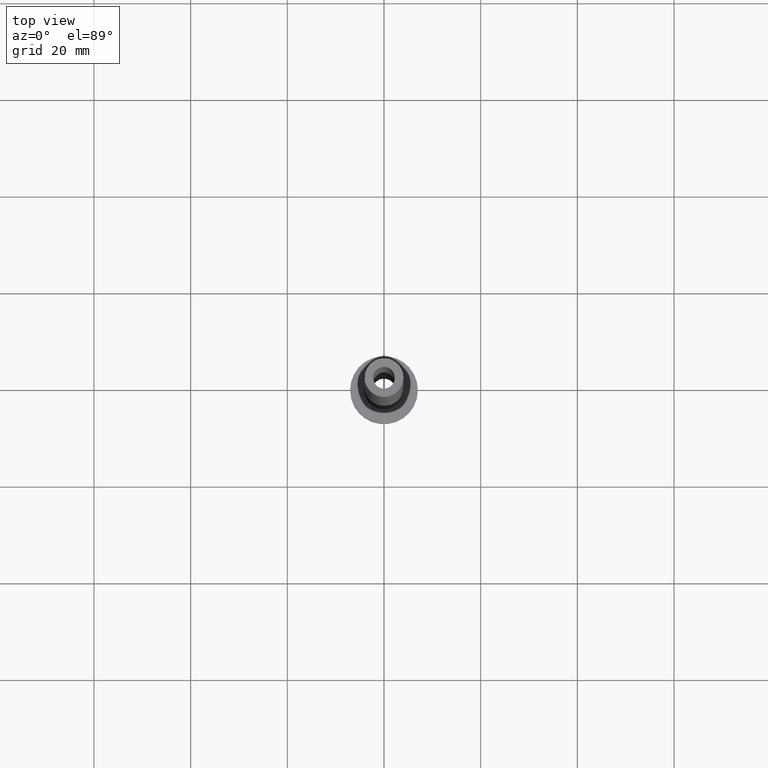
[diagram: clean part render]
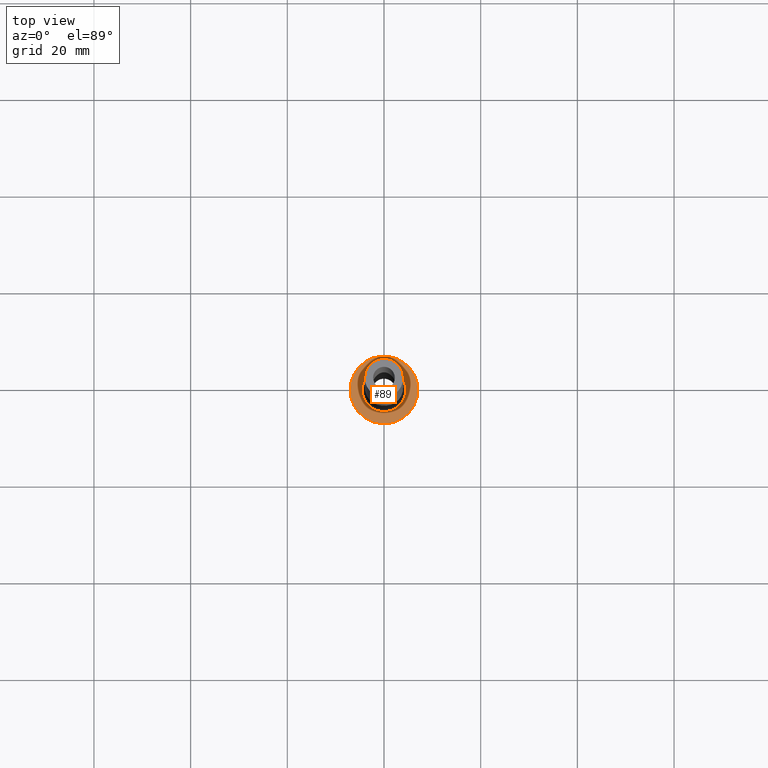
[diagram: same view with one face highlighted and labeled with its STEP entity id]
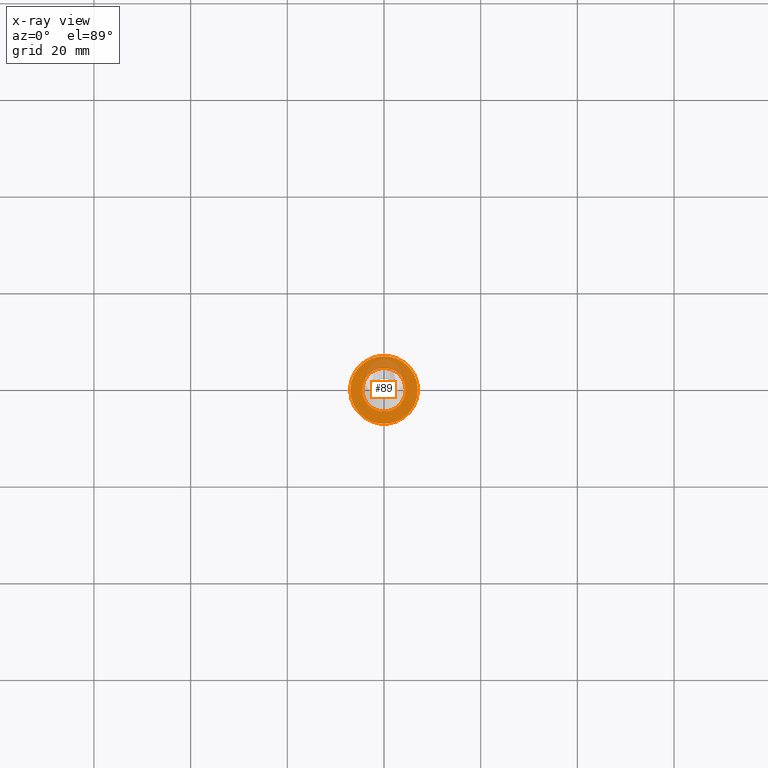
[diagram: x-ray of the same camera — body ghosted, the highlighted face saturated]
A machine part, top view. The second image highlights one B-rep face of the part: STEP entity #89.
The next image is the same camera in x-ray: the body ghosted, the highlighted face saturated — about 17% of this face is hidden behind the body in this view.
In plain terms, the highlighted planar face has unit normal (0, 0, 1).
Its self-contained STEP definition (entity closure, byte-faithful):
#3 = CIRCLE ( 'NONE', #285, 4.500000000000000888 ) ;
#25 = CIRCLE ( 'NONE', #182, 4.500000000000000888 ) ;
#34 = ORIENTED_EDGE ( 'NONE', *, *, #236, .T. ) ;
#36 = CARTESIAN_POINT ( 'NONE',  ( 0.000000000000000000, 0.000000000000000000, 5.000000000000000000 ) ) ;
#55 = CARTESIAN_POINT ( 'NONE',  ( -4.500000000000000888, 5.510910596163088569E-16, 5.000000000000002665 ) ) ;
#63 = VERTEX_POINT ( 'NONE', #109 ) ;
#83 = AXIS2_PLACEMENT_3D ( 'NONE', #422, #215, #461 ) ;
#87 = EDGE_LOOP ( 'NONE', ( #225, #224 ) ) ;
#89 = ADVANCED_FACE ( 'NONE', ( #423, #284 ), #174, .T. ) ;
#93 = DIRECTION ( 'NONE',  ( 1.000000000000000000, 0.000000000000000000, 0.000000000000000000 ) ) ;
#109 = CARTESIAN_POINT ( 'NONE',  ( 4.500000000000000888, 0.000000000000000000, 5.000000000000002665 ) ) ;
#113 = EDGE_CURVE ( 'NONE', #196, #328, #167, .T. ) ;
#146 = DIRECTION ( 'NONE',  ( 0.000000000000000000, 0.000000000000000000, 1.000000000000000000 ) ) ;
#167 = CIRCLE ( 'NONE', #304, 7.000000000000000000 ) ;
#172 = EDGE_CURVE ( 'NONE', #299, #63, #3, .T. ) ;
#174 = PLANE ( 'NONE',  #241 ) ;
#179 = DIRECTION ( 'NONE',  ( 1.000000000000000000, 0.000000000000000000, 0.000000000000000000 ) ) ;
#182 = AXIS2_PLACEMENT_3D ( 'NONE', #183, #296, #248 ) ;
#183 = CARTESIAN_POINT ( 'NONE',  ( 0.000000000000000000, 0.000000000000000000, 5.000000000000000000 ) ) ;
#196 = VERTEX_POINT ( 'NONE', #217 ) ;
#215 = DIRECTION ( 'NONE',  ( 0.000000000000000000, 0.000000000000000000, 1.000000000000000000 ) ) ;
#217 = CARTESIAN_POINT ( 'NONE',  ( -7.000000000000000000, 0.000000000000000000, 5.000000000000000000 ) ) ;
#224 = ORIENTED_EDGE ( 'NONE', *, *, #460, .T. ) ;
#225 = ORIENTED_EDGE ( 'NONE', *, *, #113, .T. ) ;
#236 = EDGE_CURVE ( 'NONE', #63, #299, #25, .T. ) ;
#241 = AXIS2_PLACEMENT_3D ( 'NONE', #353, #457, #243 ) ;
#243 = DIRECTION ( 'NONE',  ( 1.000000000000000000, 0.000000000000000000, -0.000000000000000000 ) ) ;
#248 = DIRECTION ( 'NONE',  ( 1.000000000000000000, 0.000000000000000000, 0.000000000000000000 ) ) ;
#284 = FACE_OUTER_BOUND ( 'NONE', #87, .T. ) ;
#285 = AXIS2_PLACEMENT_3D ( 'NONE', #36, #407, #93 ) ;
#296 = DIRECTION ( 'NONE',  ( -0.000000000000000000, -0.000000000000000000, -1.000000000000000000 ) ) ;
#299 = VERTEX_POINT ( 'NONE', #55 ) ;
#302 = CIRCLE ( 'NONE', #83, 7.000000000000000000 ) ;
#304 = AXIS2_PLACEMENT_3D ( 'NONE', #314, #146, #179 ) ;
#305 = ORIENTED_EDGE ( 'NONE', *, *, #172, .T. ) ;
#314 = CARTESIAN_POINT ( 'NONE',  ( 0.000000000000000000, 0.000000000000000000, 5.000000000000000000 ) ) ;
#328 = VERTEX_POINT ( 'NONE', #413 ) ;
#353 = CARTESIAN_POINT ( 'NONE',  ( 0.000000000000000000, 0.000000000000000000, 5.000000000000000000 ) ) ;
#407 = DIRECTION ( 'NONE',  ( -0.000000000000000000, -0.000000000000000000, -1.000000000000000000 ) ) ;
#413 = CARTESIAN_POINT ( 'NONE',  ( 7.000000000000000000, 8.572527594031473190E-16, 5.000000000000000000 ) ) ;
#422 = CARTESIAN_POINT ( 'NONE',  ( 0.000000000000000000, 0.000000000000000000, 5.000000000000000000 ) ) ;
#423 = FACE_BOUND ( 'NONE', #444, .T. ) ;
#444 = EDGE_LOOP ( 'NONE', ( #34, #305 ) ) ;
#457 = DIRECTION ( 'NONE',  ( 0.000000000000000000, 0.000000000000000000, 1.000000000000000000 ) ) ;
#460 = EDGE_CURVE ( 'NONE', #328, #196, #302, .T. ) ;
#461 = DIRECTION ( 'NONE',  ( 1.000000000000000000, 0.000000000000000000, 0.000000000000000000 ) ) ;